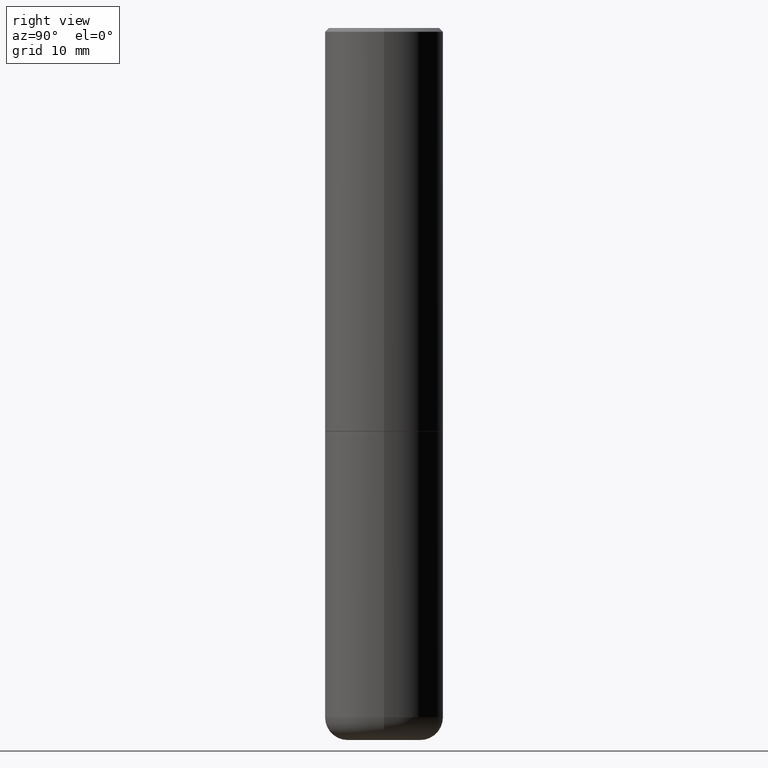
[diagram: clean part render]
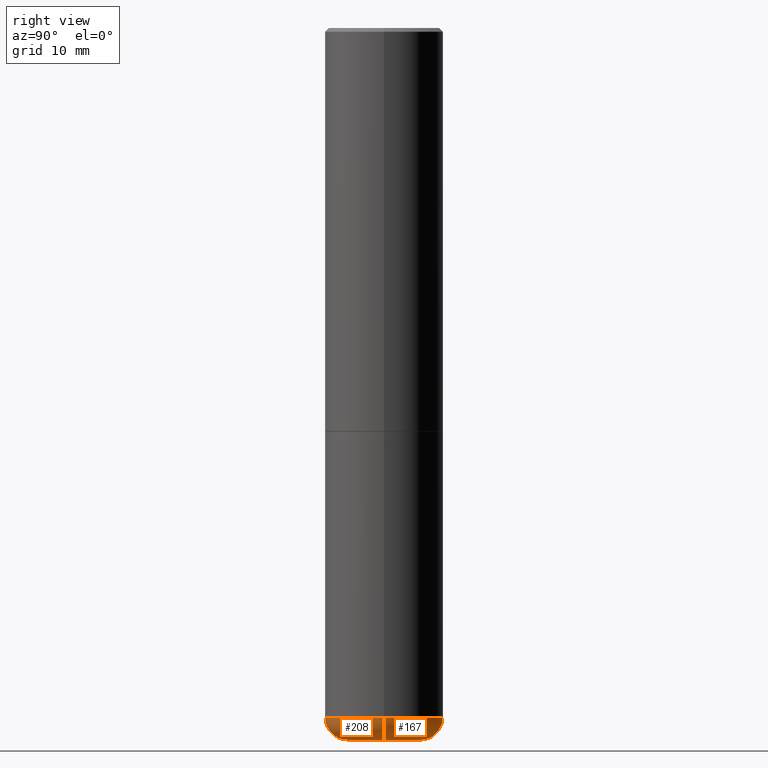
[diagram: same view with one multi-face feature highlighted, each face labeled with its STEP entity id]
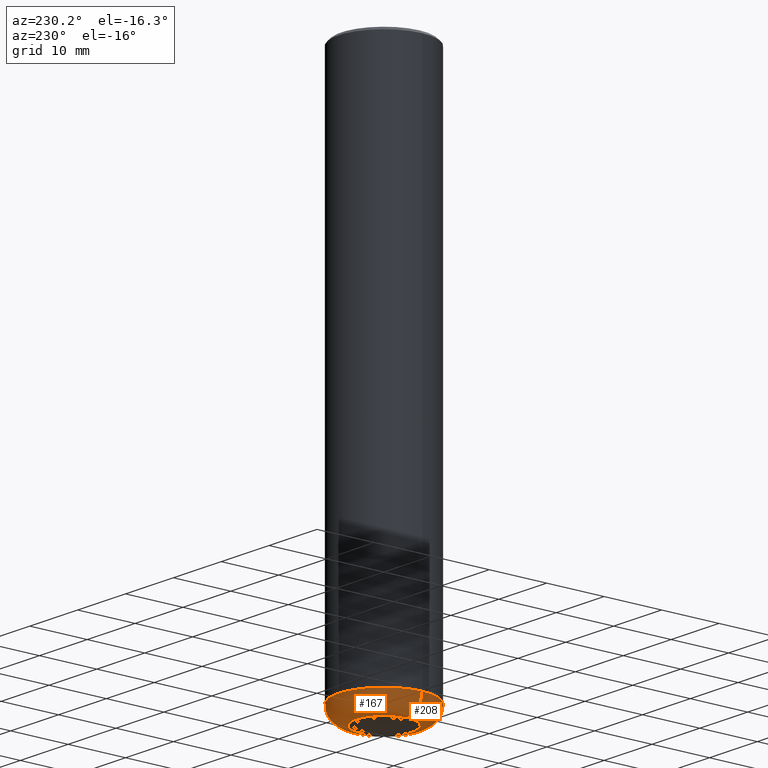
[diagram: same view with one multi-face feature highlighted, each face labeled with its STEP entity id]
A machine part, right view. The highlighted faces form ONE feature: a constant-radius fillet chain: 2 tangent blend faces with common blend radius 3.048 mm. The faces share edges in the B-rep.
A second angle (auxiliary view) of the same feature is appended — it is thin or edge-on in the first view.
Their STEP definitions:
[1] entity #208 (Torus):
#1 = ORIENTED_EDGE ( 'NONE', *, *, #451, .T. ) ;
#20 = CARTESIAN_POINT ( 'NONE',  ( 0.1914528157401960418, -1.442996288751353268E-14, -3.750000000000000000 ) ) ;
#38 = DIRECTION ( 'NONE',  ( -2.445468806185136597E-29, 3.491481338843145583E-15, 1.000000000000000000 ) ) ;
#41 = DIRECTION ( 'NONE',  ( -2.445468806185136597E-29, 3.491481338843145583E-15, 1.000000000000000000 ) ) ;
#60 = CARTESIAN_POINT ( 'NONE',  ( 9.170508023194262238E-29, -1.309305502066179741E-14, -3.750000000000000000 ) ) ;
#78 = DIRECTION ( 'NONE',  ( 7.105427357601001859E-15, 1.000000000000000000, -3.491481338843145583E-15 ) ) ;
#90 = VERTEX_POINT ( 'NONE', #20 ) ;
#95 = DIRECTION ( 'NONE',  ( 1.000000000000000000, -6.982962677686269077E-15, 0.000000000000000000 ) ) ;
#99 = DIRECTION ( 'NONE',  ( -2.445468806185136597E-29, 3.491481338843145583E-15, 1.000000000000000000 ) ) ;
#155 = CARTESIAN_POINT ( 'NONE',  ( -0.1925000000000002265, -1.130629844705173198E-14, -3.630004569232299971 ) ) ;
#161 = VERTEX_POINT ( 'NONE', #360 ) ;
#163 = CARTESIAN_POINT ( 'NONE',  ( 0.3125000000000000000, -1.485626905016688558E-14, -3.630004569232299971 ) ) ;
#184 = TOROIDAL_SURFACE ( 'NONE', #267, 0.1925000000000002265, 0.1199999999999997735 ) ;
#199 = VERTEX_POINT ( 'NONE', #163 ) ;
#208 = ADVANCED_FACE ( 'NONE', ( #428 ), #184, .T. ) ;
#215 = DIRECTION ( 'NONE',  ( 1.000000000000000000, -6.982962677686265133E-15, 0.000000000000000000 ) ) ;
#217 = CIRCLE ( 'NONE', #303, 0.1199999999999997735 ) ;
#250 = CIRCLE ( 'NONE', #434, 0.3125000000000000000 ) ;
#260 = EDGE_LOOP ( 'NONE', ( #262, #335, #1, #312 ) ) ;
#262 = ORIENTED_EDGE ( 'NONE', *, *, #302, .F. ) ;
#267 = AXIS2_PLACEMENT_3D ( 'NONE', #287, #41, #470 ) ;
#275 = DIRECTION ( 'NONE',  ( -1.000000000000000000, 7.105427357601005014E-15, 0.000000000000000000 ) ) ;
#277 = AXIS2_PLACEMENT_3D ( 'NONE', #60, #99, #95 ) ;
#286 = CIRCLE ( 'NONE', #458, 0.1199999999999997735 ) ;
#287 = CARTESIAN_POINT ( 'NONE',  ( 8.877062940367102659E-29, -1.267409321338992723E-14, -3.630004569232299971 ) ) ;
#290 = CARTESIAN_POINT ( 'NONE',  ( 0.1925000000000002265, -1.401831352884453547E-14, -3.630004569232299971 ) ) ;
#302 = EDGE_CURVE ( 'NONE', #161, #461, #286, .T. ) ;
#303 = AXIS2_PLACEMENT_3D ( 'NONE', #290, #474, #215 ) ;
#312 = ORIENTED_EDGE ( 'NONE', *, *, #322, .F. ) ;
#322 = EDGE_CURVE ( 'NONE', #461, #199, #250, .T. ) ;
#335 = ORIENTED_EDGE ( 'NONE', *, *, #419, .T. ) ;
#360 = CARTESIAN_POINT ( 'NONE',  ( -0.1914528157401960418, -1.109317405507563798E-14, -3.750000000000000000 ) ) ;
#391 = CARTESIAN_POINT ( 'NONE',  ( 8.877062940367102659E-29, -1.267409321338992723E-14, -3.630004569232299971 ) ) ;
#419 = EDGE_CURVE ( 'NONE', #161, #90, #437, .T. ) ;
#428 = FACE_OUTER_BOUND ( 'NONE', #260, .T. ) ;
#434 = AXIS2_PLACEMENT_3D ( 'NONE', #391, #38, #462 ) ;
#437 = CIRCLE ( 'NONE', #277, 0.1914528157401960418 ) ;
#451 = EDGE_CURVE ( 'NONE', #90, #199, #217, .T. ) ;
#458 = AXIS2_PLACEMENT_3D ( 'NONE', #155, #78, #275 ) ;
#461 = VERTEX_POINT ( 'NONE', #471 ) ;
#462 = DIRECTION ( 'NONE',  ( 1.000000000000000000, -6.982962677686269077E-15, 0.000000000000000000 ) ) ;
#470 = DIRECTION ( 'NONE',  ( 1.000000000000000000, -6.982962677686269077E-15, 4.883557194083114022E-29 ) ) ;
#471 = CARTESIAN_POINT ( 'NONE',  ( -0.3125000000000000000, -7.826299479965492348E-15, -3.630004569232299971 ) ) ;
#474 = DIRECTION ( 'NONE',  ( -6.982962677686266711E-15, -1.000000000000000000, 3.491481338843145583E-15 ) ) ;
[2] entity #167 (Torus):
#4 = AXIS2_PLACEMENT_3D ( 'NONE', #116, #432, #165 ) ;
#6 = CIRCLE ( 'NONE', #4, 0.3125000000000000000 ) ;
#20 = CARTESIAN_POINT ( 'NONE',  ( 0.1914528157401960418, -1.442996288751353268E-14, -3.750000000000000000 ) ) ;
#31 = DIRECTION ( 'NONE',  ( -2.445468806185136597E-29, 3.491481338843145583E-15, 1.000000000000000000 ) ) ;
#33 = AXIS2_PLACEMENT_3D ( 'NONE', #367, #31, #476 ) ;
#65 = AXIS2_PLACEMENT_3D ( 'NONE', #284, #375, #381 ) ;
#78 = DIRECTION ( 'NONE',  ( 7.105427357601001859E-15, 1.000000000000000000, -3.491481338843145583E-15 ) ) ;
#90 = VERTEX_POINT ( 'NONE', #20 ) ;
#107 = CIRCLE ( 'NONE', #33, 0.1914528157401960418 ) ;
#116 = CARTESIAN_POINT ( 'NONE',  ( 8.877062940367102659E-29, -1.267409321338992723E-14, -3.630004569232299971 ) ) ;
#128 = EDGE_CURVE ( 'NONE', #90, #161, #107, .T. ) ;
#155 = CARTESIAN_POINT ( 'NONE',  ( -0.1925000000000002265, -1.130629844705173198E-14, -3.630004569232299971 ) ) ;
#157 = ORIENTED_EDGE ( 'NONE', *, *, #268, .F. ) ;
#161 = VERTEX_POINT ( 'NONE', #360 ) ;
#163 = CARTESIAN_POINT ( 'NONE',  ( 0.3125000000000000000, -1.485626905016688558E-14, -3.630004569232299971 ) ) ;
#165 = DIRECTION ( 'NONE',  ( 1.000000000000000000, -6.982962677686269077E-15, 0.000000000000000000 ) ) ;
#167 = ADVANCED_FACE ( 'NONE', ( #213 ), #482, .T. ) ;
#199 = VERTEX_POINT ( 'NONE', #163 ) ;
#213 = FACE_OUTER_BOUND ( 'NONE', #376, .T. ) ;
#215 = DIRECTION ( 'NONE',  ( 1.000000000000000000, -6.982962677686265133E-15, 0.000000000000000000 ) ) ;
#217 = CIRCLE ( 'NONE', #303, 0.1199999999999997735 ) ;
#233 = ORIENTED_EDGE ( 'NONE', *, *, #128, .T. ) ;
#237 = ORIENTED_EDGE ( 'NONE', *, *, #302, .T. ) ;
#239 = ORIENTED_EDGE ( 'NONE', *, *, #451, .F. ) ;
#268 = EDGE_CURVE ( 'NONE', #199, #461, #6, .T. ) ;
#275 = DIRECTION ( 'NONE',  ( -1.000000000000000000, 7.105427357601005014E-15, 0.000000000000000000 ) ) ;
#284 = CARTESIAN_POINT ( 'NONE',  ( 8.877062940367102659E-29, -1.267409321338992723E-14, -3.630004569232299971 ) ) ;
#286 = CIRCLE ( 'NONE', #458, 0.1199999999999997735 ) ;
#290 = CARTESIAN_POINT ( 'NONE',  ( 0.1925000000000002265, -1.401831352884453547E-14, -3.630004569232299971 ) ) ;
#302 = EDGE_CURVE ( 'NONE', #161, #461, #286, .T. ) ;
#303 = AXIS2_PLACEMENT_3D ( 'NONE', #290, #474, #215 ) ;
#360 = CARTESIAN_POINT ( 'NONE',  ( -0.1914528157401960418, -1.109317405507563798E-14, -3.750000000000000000 ) ) ;
#367 = CARTESIAN_POINT ( 'NONE',  ( 9.170508023194262238E-29, -1.309305502066179741E-14, -3.750000000000000000 ) ) ;
#375 = DIRECTION ( 'NONE',  ( -2.445468806185136597E-29, 3.491481338843145583E-15, 1.000000000000000000 ) ) ;
#376 = EDGE_LOOP ( 'NONE', ( #233, #237, #157, #239 ) ) ;
#381 = DIRECTION ( 'NONE',  ( 1.000000000000000000, -6.982962677686269077E-15, 4.883557194083114022E-29 ) ) ;
#432 = DIRECTION ( 'NONE',  ( -2.445468806185136597E-29, 3.491481338843145583E-15, 1.000000000000000000 ) ) ;
#451 = EDGE_CURVE ( 'NONE', #90, #199, #217, .T. ) ;
#458 = AXIS2_PLACEMENT_3D ( 'NONE', #155, #78, #275 ) ;
#461 = VERTEX_POINT ( 'NONE', #471 ) ;
#471 = CARTESIAN_POINT ( 'NONE',  ( -0.3125000000000000000, -7.826299479965492348E-15, -3.630004569232299971 ) ) ;
#474 = DIRECTION ( 'NONE',  ( -6.982962677686266711E-15, -1.000000000000000000, 3.491481338843145583E-15 ) ) ;
#476 = DIRECTION ( 'NONE',  ( 1.000000000000000000, -6.982962677686269077E-15, 0.000000000000000000 ) ) ;
#482 = TOROIDAL_SURFACE ( 'NONE', #65, 0.1925000000000002265, 0.1199999999999997735 ) ;